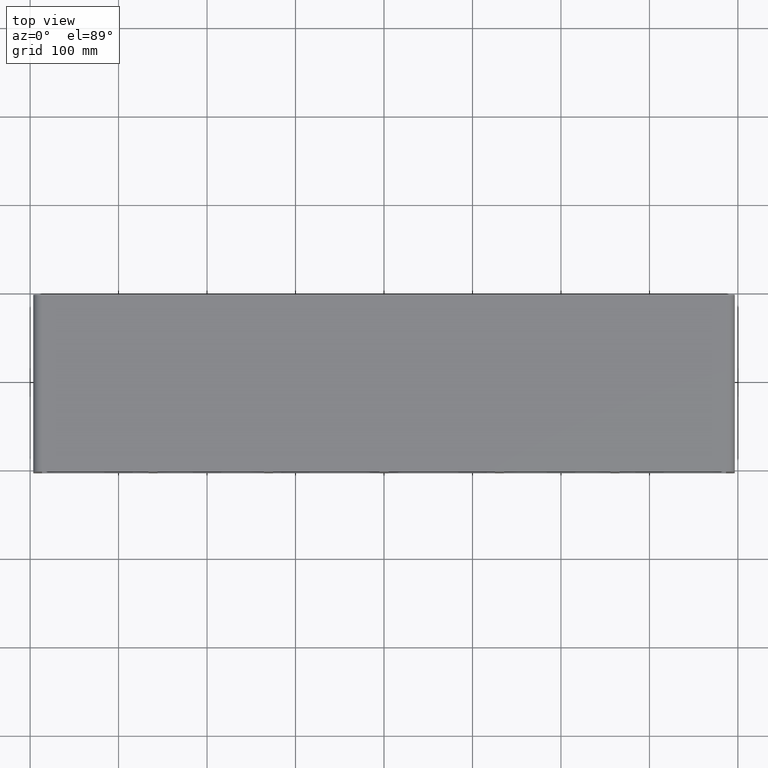
[diagram: clean part render]
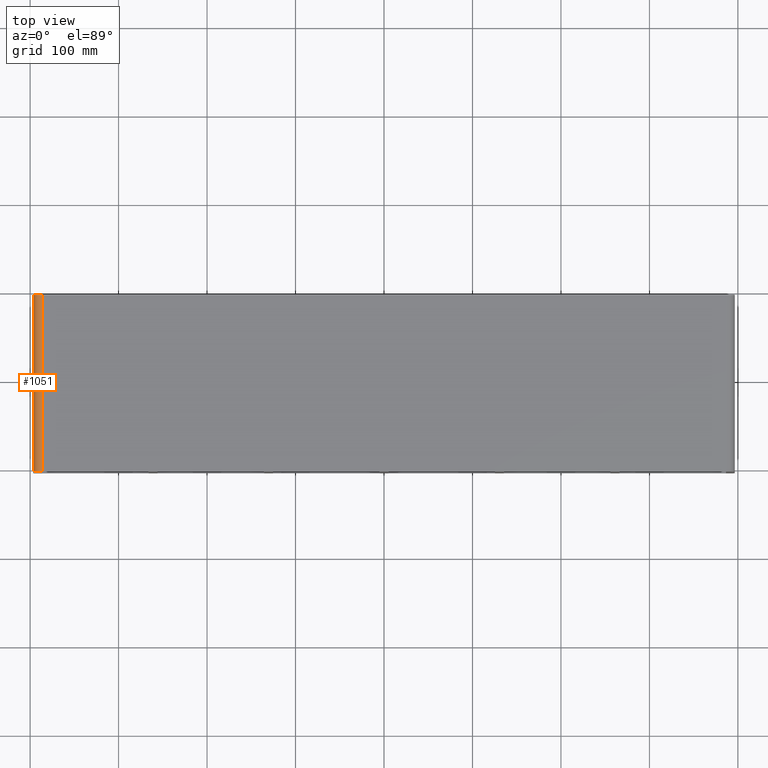
[diagram: same view with one face highlighted and labeled with its STEP entity id]
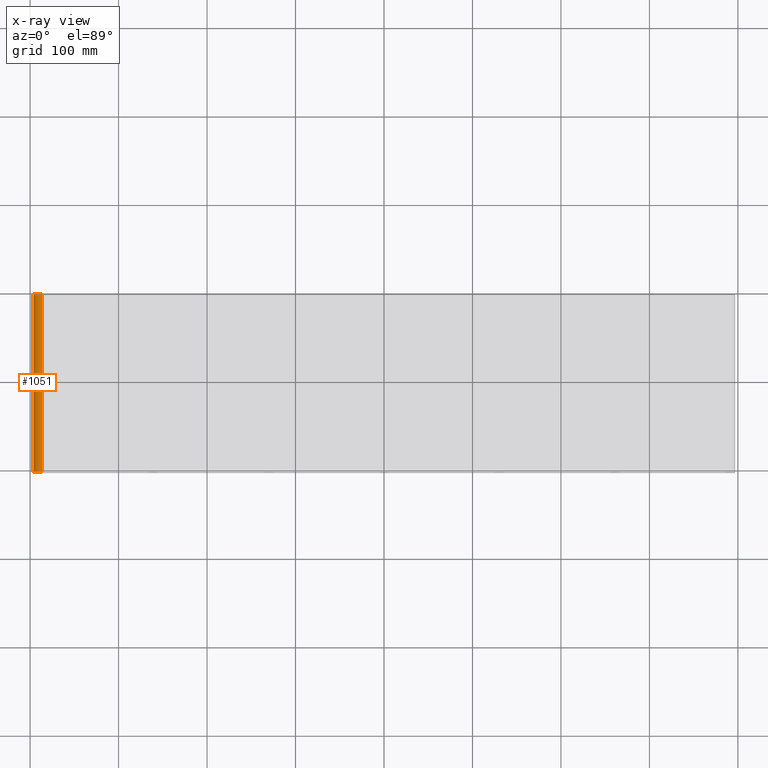
[diagram: x-ray of the same camera — body ghosted, the highlighted face saturated]
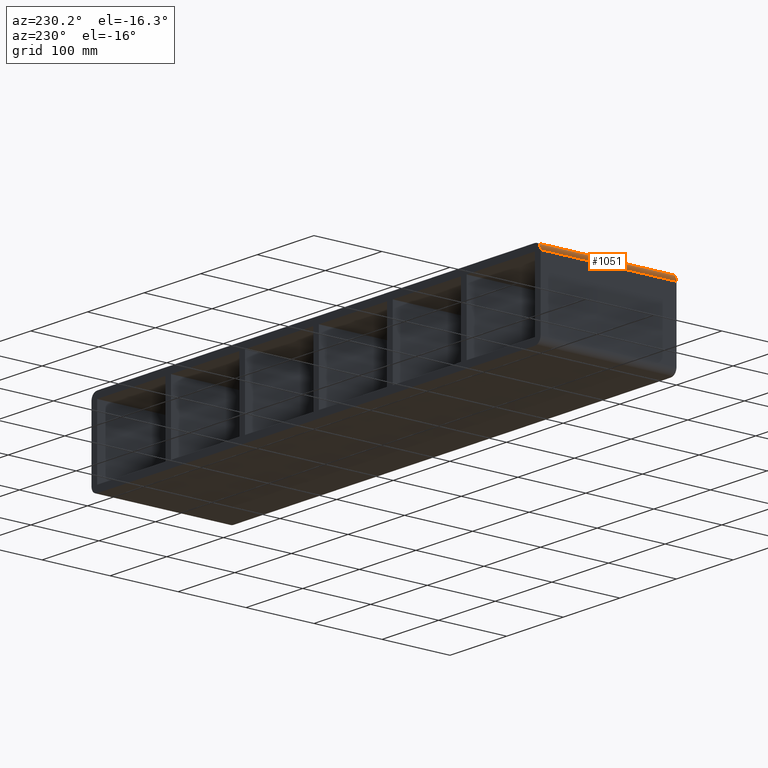
[diagram: same view with one face highlighted and labeled with its STEP entity id]
A machine part, top view. The second image highlights one B-rep face of the part: STEP entity #1051.
The next image is the same camera in x-ray: the body ghosted, the highlighted face saturated — about 0% of this face is hidden behind the body in this view.
A second angle (auxiliary view) of the same face is appended — the face is thin or edge-on in the first view.
In plain terms, the highlighted cylindrical surface (edge-blend (fillet) strip) has radius 10 mm, axis along (0, 1, 0).
Its self-contained STEP definition (entity closure, byte-faithful):
#850=CARTESIAN_POINT('',(-386.5,-3.0,60.500000000000007));
#851=VERTEX_POINT('',#850);
#858=CARTESIAN_POINT('',(-396.5,-3.0,50.500000000000007));
#859=VERTEX_POINT('',#858);
#860=CARTESIAN_POINT('',(-386.5,-3.0,50.500000000000007));
#861=DIRECTION('',(0.0,1.0,0.0));
#862=DIRECTION('',(-0.707106781186547,0.0,0.707106781186547));
#863=AXIS2_PLACEMENT_3D('',#860,#861,#862);
#864=CIRCLE('',#863,9.999999999999998);
#865=EDGE_CURVE('',#859,#851,#864,.T.);
#1009=CARTESIAN_POINT('',(-386.5,197.0,60.500000000000007));
#1010=VERTEX_POINT('',#1009);
#1017=CARTESIAN_POINT('',(-386.5,-3.0,60.500000000000007));
#1018=DIRECTION('',(0.0,1.0,0.0));
#1019=VECTOR('',#1018,200.0);
#1020=LINE('',#1017,#1019);
#1021=EDGE_CURVE('',#851,#1010,#1020,.T.);
#1027=CARTESIAN_POINT('',(-386.5,0.0,50.500000000000007));
#1028=DIRECTION('',(0.0,1.0,0.0));
#1029=DIRECTION('',(-0.707106781186547,0.0,0.707106781186547));
#1030=AXIS2_PLACEMENT_3D('',#1027,#1028,#1029);
#1031=CYLINDRICAL_SURFACE('',#1030,10.0);
#1032=CARTESIAN_POINT('',(-396.5,197.0,50.500000000000007));
#1033=VERTEX_POINT('',#1032);
#1034=CARTESIAN_POINT('',(-386.5,197.0,50.500000000000007));
#1035=DIRECTION('',(0.0,-1.0,0.0));
#1036=DIRECTION('',(-0.707106781186547,0.0,0.707106781186547));
#1037=AXIS2_PLACEMENT_3D('',#1034,#1035,#1036);
#1038=CIRCLE('',#1037,9.999999999999998);
#1039=EDGE_CURVE('',#1010,#1033,#1038,.T.);
#1040=ORIENTED_EDGE('',*,*,#1039,.T.);
#1041=CARTESIAN_POINT('',(-396.5,197.0,50.500000000000007));
#1042=DIRECTION('',(0.0,-1.0,0.0));
#1043=VECTOR('',#1042,200.0);
#1044=LINE('',#1041,#1043);
#1045=EDGE_CURVE('',#1033,#859,#1044,.T.);
#1046=ORIENTED_EDGE('',*,*,#1045,.T.);
#1047=ORIENTED_EDGE('',*,*,#865,.T.);
#1048=ORIENTED_EDGE('',*,*,#1021,.T.);
#1049=EDGE_LOOP('',(#1040,#1046,#1047,#1048));
#1050=FACE_OUTER_BOUND('',#1049,.T.);
#1051=ADVANCED_FACE('',(#1050),#1031,.T.);